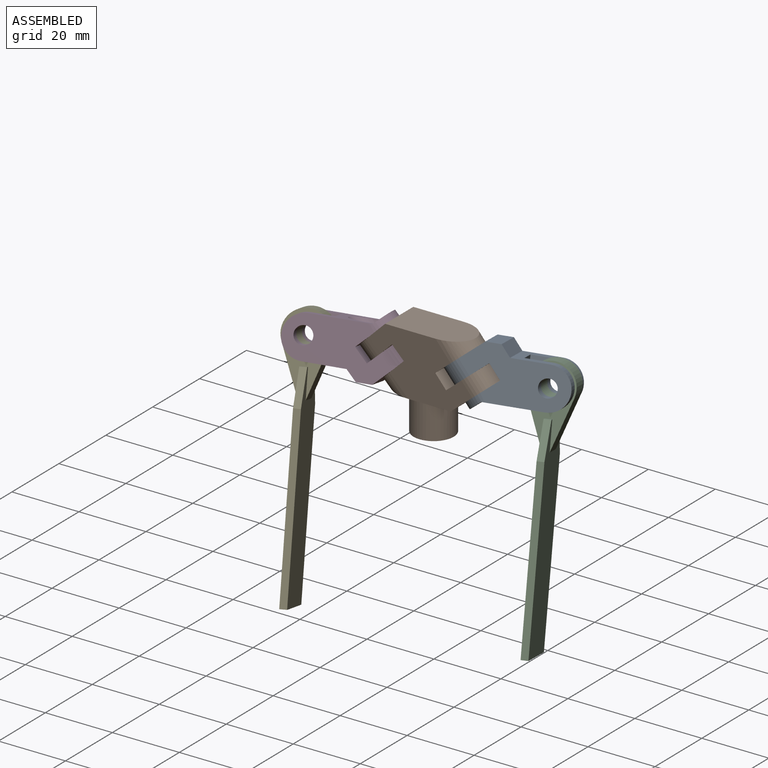
[diagram: assembled view]
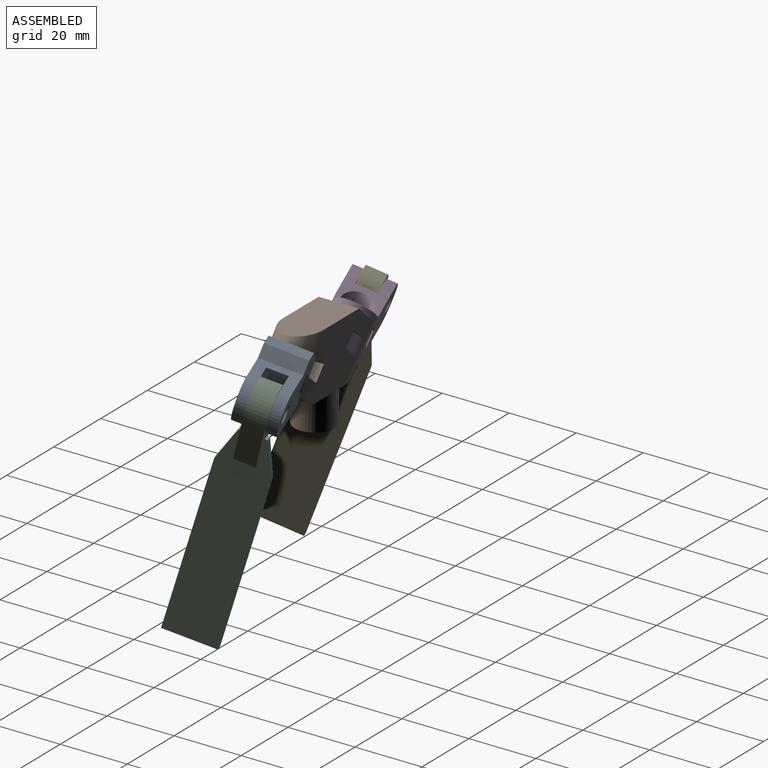
[diagram: assembled view, second angle]
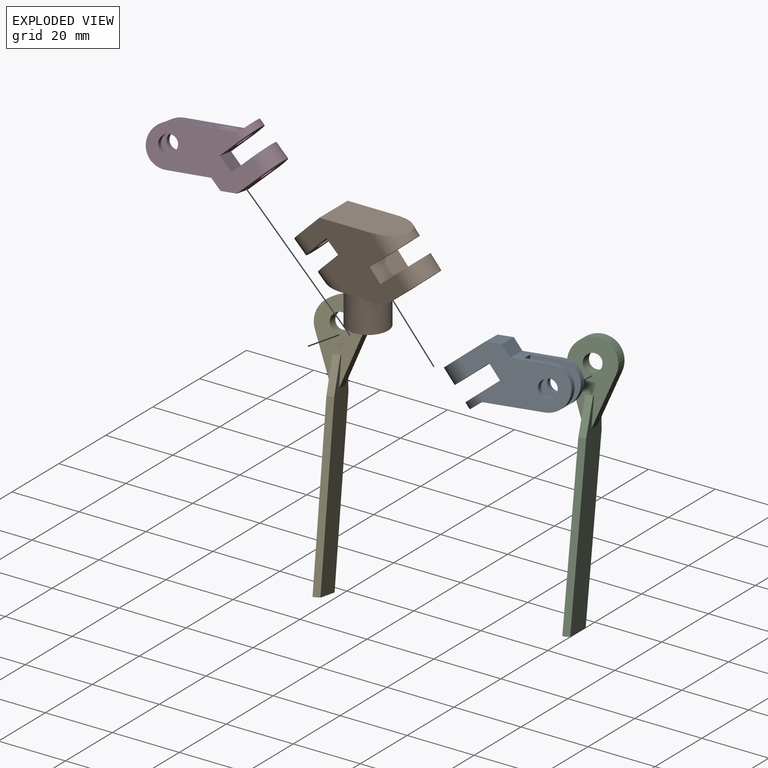
[diagram: exploded view]
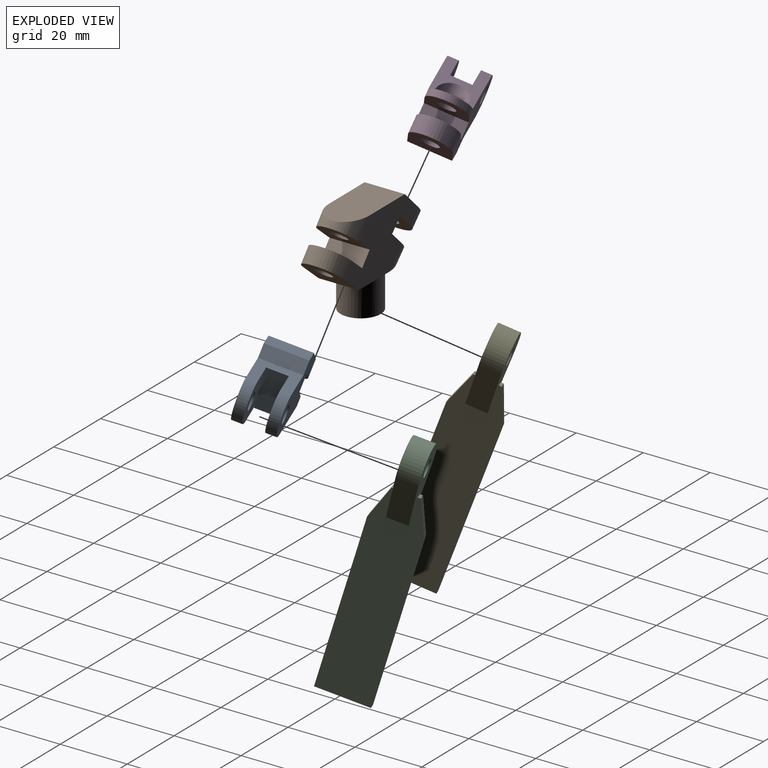
[diagram: exploded view, second angle]
ASSEMBLY  parts=5 mates=4
PART A: 23 faces, bbox 33.8x12x18.9 mm
  f0: cylinder r=2.5mm len=5.12mm, axis (-0.64,0,0.77), area 31.4mm2, adj f3,f4
  f1: plane 16.26x12mm, normal (0,0,-1), area 97mm2, adj f4,f12,f13,f14,f15,f16,f17,f18
  f2: cylinder r=2.5mm len=5mm, axis (0,1,0), area 47.1mm2, adj f13,f15
  f3: plane 12x9.19mm, normal (-0.64,0,0.77), area 108.9mm2, adj f0,f10,f12,f13,f20
  f4: plane 11.84x8.04mm, normal (0.64,0,-0.77), area 65.7mm2, adj f0,f1,f20,f22
  f5: plane 12x10.38mm, normal (0,0,1), area 79.5mm2, adj f6,f12,f13,f14,f15,f16,f17,f18
  f6: plane 12x3.01mm, normal (0.77,0,0.64), area 47.1mm2, adj f5,f7,f12,f13
  f7: plane 12x4.14mm, normal (0,0,1), area 49.7mm2, adj f6,f8,f12,f13
  f8: plane 12x10.77mm, normal (-0.64,0,0.77), area 133.6mm2, adj f7,f12,f13,f19,f21
  f9: plane 12x9.19mm, normal (0.64,0,-0.77), area 108.9mm2, adj f10,f12,f13,f19,f21
  f10: plane 12x3.83mm, normal (-0.77,0,-0.64), area 60mm2, adj f3,f9,f12,f13
  f11: cylinder r=2.5mm len=5mm, axis (0,1,0), area 47.1mm2, adj f12,f16
  f12: plane 29.21x15.01mm, normal (0,-1,0), area 263.8mm2, adj f1,f3,f5,f6,f7,f8,f9,f10
  f13: plane 29.21x15.01mm, normal (0,1,0), area 263.8mm2, adj f1,f2,f3,f5,f6,f7,f8,f9
  f14: plane 12x6mm, normal (1,0,0), area 72mm2, adj f1,f5,f15,f16
  f15: plane 13.5x12mm, normal (0,-1,0), area 126.9mm2, adj f1,f2,f5,f14,f17
  f16: plane 13.5x12mm, normal (0,1,0), area 126.9mm2, adj f1,f5,f11,f14,f18
  f17: cylinder r=6mm len=12mm, axis (0,1,0), area 56.5mm2, adj f1,f5,f13,f15
  f18: cylinder r=6mm len=12mm, axis (0,-1,0), area 56.5mm2, adj f1,f5,f12,f16
  f19: cylinder r=6mm len=12mm, axis (-0.64,0,0.77), area 94.2mm2, adj f8,f9,f12,f13
  f20: cylinder r=6mm len=12mm, axis (-0.64,0,0.77), area 38.5mm2, adj f1,f3,f4,f12,f13
  f21: cylinder r=2.5mm len=7.04mm, axis (-0.64,0,0.77), area 78.5mm2, adj f8,f9
  f22: cylinder r=4.5mm len=9mm, axis (-0.64,0,0.77), area 46.6mm2, adj f1,f4
PART B: 25 faces, bbox 40.6x12x32.3 mm
  f0: plane 12x10.99mm, normal (0.64,0,-0.77), area 137.1mm2, adj f11,f12,f13,f18,f24
  f1: plane 12x9.19mm, normal (-0.64,0,0.77), area 108.9mm2, adj f2,f12,f13,f18,f24
  f2: plane 12x3.83mm, normal (0.77,0,0.64), area 60mm2, adj f1,f3,f12,f13
  f3: plane 12x9.19mm, normal (0.64,0,-0.77), area 108.9mm2, adj f2,f12,f13,f17,f23
  f4: plane 22.89x12mm, normal (0,0,1), area 254.5mm2, adj f5,f12,f13,f17
  f5: plane 12x9.99mm, normal (-0.7,0,0.71), area 133.6mm2, adj f4,f12,f13,f16,f21
  f6: plane 12x8.53mm, normal (0.7,0,-0.71), area 108.9mm2, adj f7,f12,f13,f16,f21
  f7: plane 12x3.56mm, normal (-0.71,0,-0.7), area 60mm2, adj f6,f8,f12,f13
  f8: plane 12x8.53mm, normal (-0.7,0,0.71), area 108.9mm2, adj f7,f12,f13,f15,f20
  f9: plane 12x11.84mm, normal (0,0,-1), area 63.8mm2, adj f12,f13,f14,f15
  f10: plane 12x12mm, normal (0,0,-1), area 113.1mm2, adj f14
  f11: plane 12x9.32mm, normal (0,0,-1), area 55.3mm2, adj f0,f12,f13,f14
  f12: plane 31.73x18.42mm, normal (0,-1,0), area 339.1mm2, adj f0,f1,f2,f3,f4,f5,f6,f7
  f13: plane 31.73x18.42mm, normal (0,1,0), area 339.1mm2, adj f0,f1,f2,f3,f4,f5,f6,f7
  f14: cylinder r=6mm len=12mm, axis (0,0,1), area 377mm2, adj f9,f10,f11
  f15: cylinder r=6mm len=12mm, axis (-0.7,0,0.71), area 78.3mm2, adj f8,f9,f12,f13
  f16: cylinder r=6mm len=12mm, axis (-0.7,0,0.71), area 94.2mm2, adj f5,f6,f12,f13
  f17: cylinder r=6mm len=12mm, axis (0.64,0,-0.77), area 72.2mm2, adj f3,f4,f12,f13
  f18: cylinder r=6mm len=12mm, axis (0.64,0,-0.77), area 94.2mm2, adj f0,f1,f12,f13
  f19: plane 5x3.56mm, normal (-0.7,0,0.71), area 19.6mm2, adj f20
  f20: cylinder r=2.5mm len=6.37mm, axis (-0.7,0,0.71), area 62.8mm2, adj f8,f19
  f21: cylinder r=2.5mm len=7.07mm, axis (-0.7,0,0.71), area 78.5mm2, adj f5,f6
  f22: plane 5x3.83mm, normal (0.64,0,-0.77), area 19.6mm2, adj f23
  f23: cylinder r=2.5mm len=6.4mm, axis (-0.64,0,0.77), area 62.8mm2, adj f3,f22
  f24: cylinder r=2.5mm len=7.04mm, axis (-0.64,0,0.77), area 78.5mm2, adj f0,f1
PART C: 15 faces, bbox 74x15x13 mm
  f0: plane 22.76x13mm, normal (0,-1,0), area 158.3mm2, adj f2,f3,f4,f5,f7,f9,f10
  f1: plane 22.76x13mm, normal (0,1,0), area 158.3mm2, adj f2,f3,f4,f5,f6,f7,f9
  f2: plane 14.03x6mm, normal (0.34,0,-0.94), area 89.6mm2, adj f0,f1,f4,f7
  f3: plane 14.03x6mm, normal (0.34,0,0.94), area 89.6mm2, adj f0,f1,f4,f9
  f4: cylinder r=6.5mm len=13mm, axis (0,1,0), area 149.7mm2, adj f0,f1,f2,f3
  f5: cylinder r=2.5mm len=6mm, axis (0,1,0), area 94.2mm2, adj f0,f1
  f6: plane 2x0.86mm, normal (-1,0,0), area 1.7mm2, adj f1,f7,f9,f14
  f7: plane 59.5x15mm, normal (0,0,-1), area 806.6mm2, adj f0,f1,f2,f6,f8,f10,f11,f12
  f8: plane 15x2mm, normal (1,0,0), area 30mm2, adj f7,f9,f11,f12
  f9: plane 59.5x15mm, normal (0,0,1), area 806.6mm2, adj f0,f1,f3,f6,f8,f10,f11,f12
  f10: plane 2x0.86mm, normal (-1,0,0), area 1.7mm2, adj f0,f7,f9,f13
  f11: plane 49.5x2mm, normal (0,-1,0), area 99mm2, adj f7,f8,f9,f13
  f12: plane 49.5x2mm, normal (0,1,0), area 99mm2, adj f7,f8,f9,f14
  f13: plane 10x3.64mm, normal (-0.34,-0.94,0), area 21.3mm2, adj f7,f9,f10,f11
  f14: plane 10x3.64mm, normal (-0.34,0.94,0), area 21.3mm2, adj f6,f7,f9,f12
PART D: 23 faces, bbox 34.4x12x19 mm
  f0: plane 16.26x12mm, normal (0,0,1), area 102.8mm2, adj f3,f11,f12,f13,f14,f15,f16,f17
  f1: cylinder r=2.5mm len=5mm, axis (0,1,0), area 47.1mm2, adj f12,f14
  f2: plane 12x8.53mm, normal (0.7,0,-0.71), area 108.9mm2, adj f9,f11,f12,f19,f21
  f3: plane 11.88x7.47mm, normal (-0.7,0,0.71), area 66.2mm2, adj f0,f19,f21,f22
  f4: plane 12x11.47mm, normal (0,0,-1), area 100.7mm2, adj f5,f11,f12,f13,f14,f15,f16,f17
  f5: plane 12x2.79mm, normal (-0.71,0,-0.7), area 47.1mm2, adj f4,f6,f11,f12
  f6: plane 12x4.14mm, normal (0,0,-1), area 49.7mm2, adj f5,f7,f11,f12
  f7: plane 12x9.99mm, normal (0.7,0,-0.71), area 133.6mm2, adj f6,f11,f12,f18,f20
  f8: plane 12x8.53mm, normal (-0.7,0,0.71), area 108.9mm2, adj f9,f11,f12,f18,f20
  f9: plane 12x3.56mm, normal (0.71,0,0.7), area 60mm2, adj f2,f8,f11,f12
  f10: cylinder r=2.5mm len=5mm, axis (0,1,0), area 47.1mm2, adj f11,f15
  f11: plane 30.1x14.79mm, normal (0,-1,0), area 270.1mm2, adj f0,f2,f4,f5,f6,f7,f8,f9
  f12: plane 30.1x14.79mm, normal (0,1,0), area 270.1mm2, adj f0,f1,f2,f4,f5,f6,f7,f8
  f13: plane 12x6mm, normal (-1,0,0), area 72mm2, adj f0,f4,f14,f15
  f14: plane 12.15x12mm, normal (0,-1,0), area 110.7mm2, adj f0,f1,f4,f13,f16
  f15: plane 12.15x12mm, normal (0,1,0), area 110.7mm2, adj f0,f4,f10,f13,f17
  f16: cylinder r=6mm len=12mm, axis (0,1,0), area 56.5mm2, adj f0,f4,f12,f14
  f17: cylinder r=6mm len=12mm, axis (0,1,0), area 56.5mm2, adj f0,f4,f11,f15
  f18: cylinder r=6mm len=12mm, axis (0.7,0,-0.71), area 94.2mm2, adj f7,f8,f11,f12
  f19: cylinder r=6mm len=12mm, axis (0.7,0,-0.71), area 38.4mm2, adj f0,f2,f3,f11,f12
  f20: cylinder r=2.5mm len=7.07mm, axis (-0.7,0,0.71), area 78.5mm2, adj f7,f8
  f21: cylinder r=2.5mm len=5mm, axis (-0.7,0,0.71), area 31.4mm2, adj f2,f3
  f22: cylinder r=4.5mm len=9mm, axis (0.7,0,-0.71), area 52.6mm2, adj f0,f3
PART E: same geometry as C
PLACE A rot(axis=(-0.64,0,0.77),25.2deg) t=(1.56,-9.38,-12.9)mm
PLACE B t=(-0.04,-0.06,-14.24)mm fixed
PLACE C rot(axis=(-0.31,0.95,0.03),90.5deg) t=(10.49,8.45,35.42)mm
PLACE D rot(axis=(-0.7,0,0.71),28.2deg) t=(0.35,-2.23,-13.86)mm
PLACE E rot(axis=(0.73,0.01,-0.68),151.9deg) t=(-18.62,9.73,37.09)mm
MATE revolute E.f4 <-> D.f1  axis (0.34,-0.88,0.33) through (-31.28,-9.75,7.19)mm
MATE revolute C.f4 <-> A.f2  axis (0.33,-0.9,0.27) through (32.32,3.75,4.84)mm
MATE revolute B.f20 <-> D.f20  axis (0.7,0,-0.71) through (-12.54,-0.06,4.95)mm
MATE revolute B.f23 <-> A.f19  axis (-0.64,0,0.77) through (12.46,-0.06,4.95)mm
